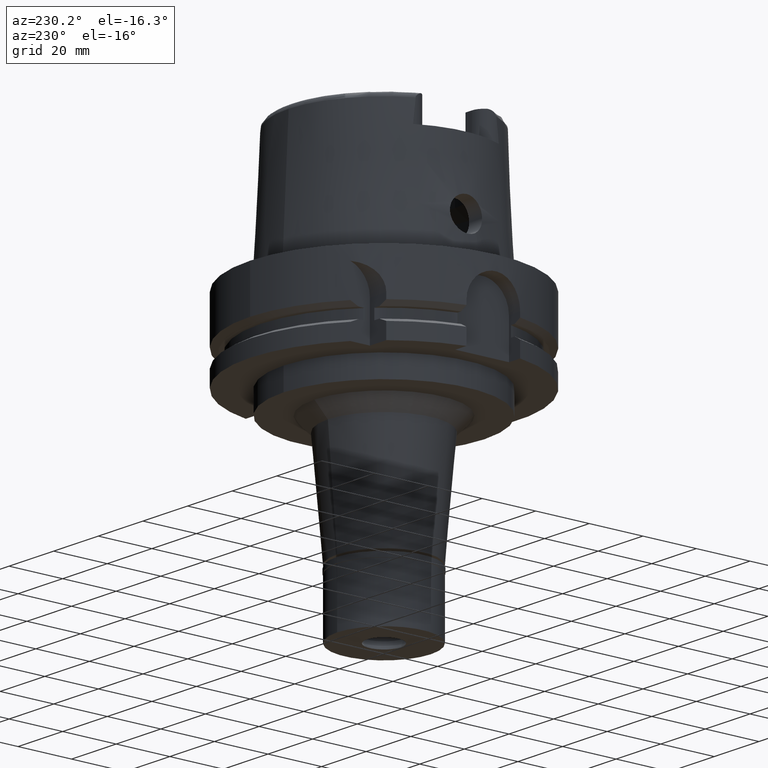
[diagram: clean part render]
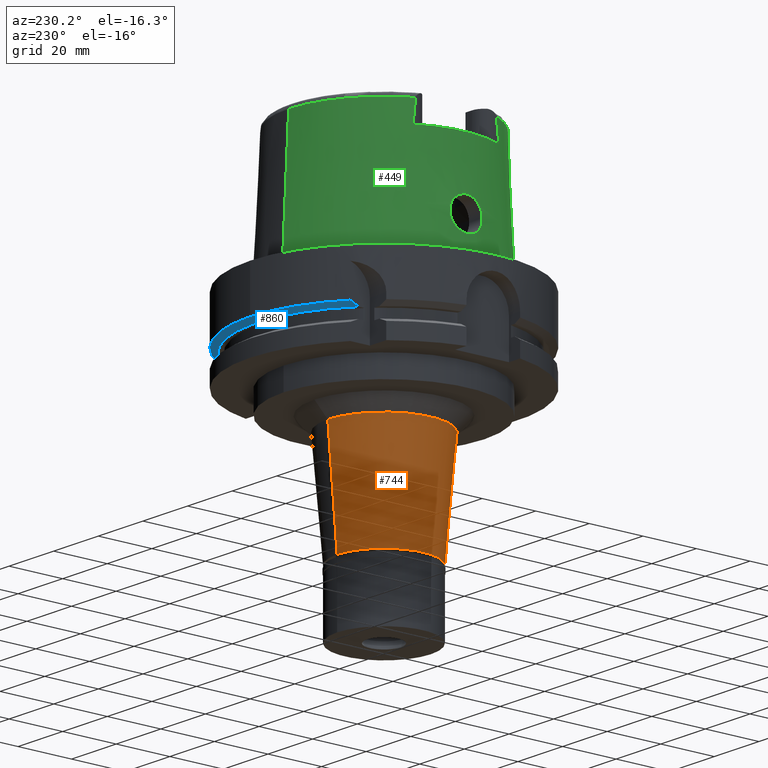
[diagram: same view with three faces highlighted in distinct colors, each labeled with its STEP entity id]
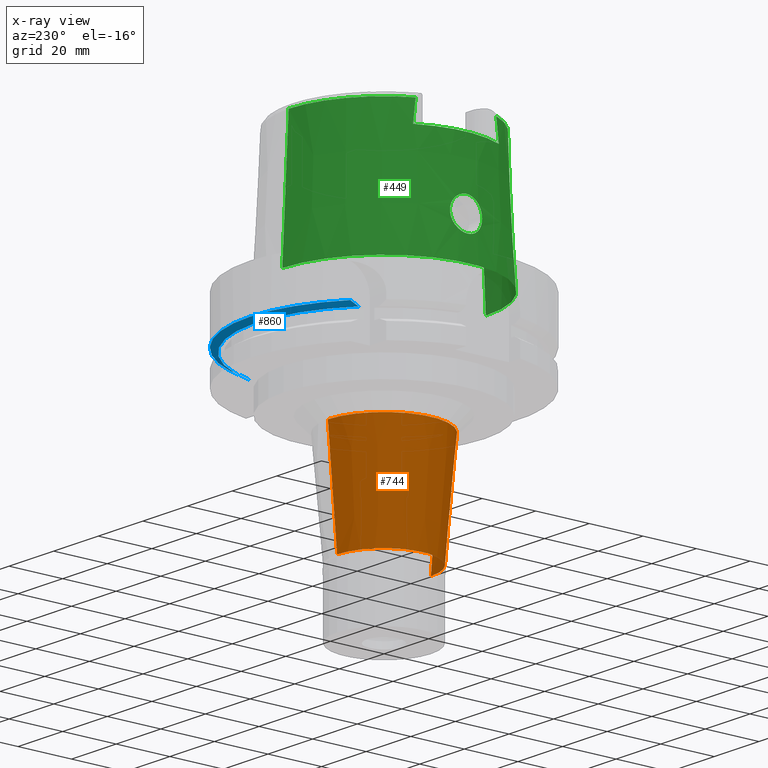
[diagram: x-ray of the same camera — body ghosted, the three highlighted faces saturated]
A machine part, auxiliary view with three faces highlighted in distinct colors.
The next image is the same camera in x-ray (body ghosted, the three faces saturated) — at least one of them is partly hidden behind the body in this view.
Their STEP definitions:

[orange] entity #744 — the highlighted conical surface has half-angle 5 deg.
#154 = CIRCLE ( 'NONE', #4940, 17.50000000000000000 ) ;
#333 = CARTESIAN_POINT ( 'NONE',  ( 0.0000000000000000000, 20.97329994197999881, -42.00000000000000000 ) ) ;
#450 = AXIS2_PLACEMENT_3D ( 'NONE', #1663, #3416, #5142 ) ;
#484 = DIRECTION ( 'NONE',  ( 0.0000000000000000000, -0.08715574274767391716, -0.9961946980917442129 ) ) ;
#688 = ORIENTED_EDGE ( 'NONE', *, *, #2232, .T. ) ;
#744 = ADVANCED_FACE ( 'NONE', ( #2501 ), #3233, .T. ) ;
#1269 = CARTESIAN_POINT ( 'NONE',  ( 0.0000000000000000000, 20.97329994197999881, -42.00000000000000000 ) ) ;
#1326 = DIRECTION ( 'NONE',  ( 0.0000000000000000000, 0.08715574274767391716, -0.9961946980917442129 ) ) ;
#1400 = DIRECTION ( 'NONE',  ( 0.0000000000000000000, 0.0000000000000000000, 1.000000000000000000 ) ) ;
#1442 = VERTEX_POINT ( 'NONE', #333 ) ;
#1458 = DIRECTION ( 'NONE',  ( 0.0000000000000000000, 1.000000000000000000, 0.0000000000000000000 ) ) ;
#1608 = DIRECTION ( 'NONE',  ( 0.0000000000000000000, -1.000000000000000000, 0.0000000000000000000 ) ) ;
#1663 = CARTESIAN_POINT ( 'NONE',  ( 0.0000000000000000000, 0.0000000000000000000, -61.85000000000000142 ) ) ;
#1693 = ORIENTED_EDGE ( 'NONE', *, *, #2671, .T. ) ;
#1745 = LINE ( 'NONE', #1777, #2748 ) ;
#1777 = CARTESIAN_POINT ( 'NONE',  ( 0.0000000000000000000, -20.97329994197999881, -42.00000000000000000 ) ) ;
#1967 = CARTESIAN_POINT ( 'NONE',  ( 0.0000000000000000000, -20.97329994197999881, -42.00000000000000000 ) ) ;
#2093 = ORIENTED_EDGE ( 'NONE', *, *, #2921, .T. ) ;
#2143 = LINE ( 'NONE', #1269, #3478 ) ;
#2174 = VERTEX_POINT ( 'NONE', #5230 ) ;
#2232 = EDGE_CURVE ( 'NONE', #1442, #2174, #2143, .T. ) ;
#2244 = EDGE_LOOP ( 'NONE', ( #2093, #3253, #1693, #688 ) ) ;
#2273 = EDGE_CURVE ( 'NONE', #3920, #4770, #1745, .T. ) ;
#2345 = CARTESIAN_POINT ( 'NONE',  ( 0.0000000000000000000, -17.50000000000000000, -81.69999999999998863 ) ) ;
#2382 = CARTESIAN_POINT ( 'NONE',  ( 0.0000000000000000000, 0.0000000000000000000, -81.69999999999998863 ) ) ;
#2501 = FACE_OUTER_BOUND ( 'NONE', #2244, .T. ) ;
#2671 = EDGE_CURVE ( 'NONE', #3920, #1442, #3393, .T. ) ;
#2748 = VECTOR ( 'NONE', #1326, 1000.000000000000000 ) ;
#2921 = EDGE_CURVE ( 'NONE', #2174, #4770, #154, .T. ) ;
#3112 = AXIS2_PLACEMENT_3D ( 'NONE', #3750, #5488, #1608 ) ;
#3233 = CONICAL_SURFACE ( 'NONE', #450, 19.23664997098999763, 0.08726646259969973729 ) ;
#3253 = ORIENTED_EDGE ( 'NONE', *, *, #2273, .F. ) ;
#3393 = CIRCLE ( 'NONE', #3112, 20.97329994197999881 ) ;
#3416 = DIRECTION ( 'NONE',  ( 0.0000000000000000000, 0.0000000000000000000, 1.000000000000000000 ) ) ;
#3478 = VECTOR ( 'NONE', #484, 1000.000000000000000 ) ;
#3750 = CARTESIAN_POINT ( 'NONE',  ( 0.0000000000000000000, 0.0000000000000000000, -42.00000000000000000 ) ) ;
#3920 = VERTEX_POINT ( 'NONE', #1967 ) ;
#4770 = VERTEX_POINT ( 'NONE', #2345 ) ;
#4940 = AXIS2_PLACEMENT_3D ( 'NONE', #2382, #1400, #1458 ) ;
#5142 = DIRECTION ( 'NONE',  ( 0.0000000000000000000, 1.000000000000000000, 0.0000000000000000000 ) ) ;
#5230 = CARTESIAN_POINT ( 'NONE',  ( 0.0000000000000000000, 17.50000000000000000, -81.69999999999998863 ) ) ;
#5488 = DIRECTION ( 'NONE',  ( 0.0000000000000000000, 0.0000000000000000000, -1.000000000000000000 ) ) ;

[blue] entity #860 — the highlighted conical surface has half-angle 60 deg.
#164 = CIRCLE ( 'NONE', #1149, 47.62259526418999656 ) ;
#318 = EDGE_CURVE ( 'NONE', #3232, #936, #2723, .T. ) ;
#339 = AXIS2_PLACEMENT_3D ( 'NONE', #4835, #503, #2980 ) ;
#393 = ORIENTED_EDGE ( 'NONE', *, *, #318, .F. ) ;
#422 = CARTESIAN_POINT ( 'NONE',  ( 0.0000000000000000000, 50.00000000000000000, -16.75240473580999989 ) ) ;
#503 = DIRECTION ( 'NONE',  ( 0.0000000000000000000, 0.0000000000000000000, 1.000000000000000000 ) ) ;
#514 = CARTESIAN_POINT ( 'NONE',  ( 0.0000000000000000000, 0.0000000000000000000, -16.75240473580999989 ) ) ;
#600 = DIRECTION ( 'NONE',  ( 0.9729578356532629924, 0.2309827916553914839, 0.0000000000000000000 ) ) ;
#825 = ORIENTED_EDGE ( 'NONE', *, *, #4274, .T. ) ;
#860 = ADVANCED_FACE ( 'NONE', ( #3551 ), #3963, .T. ) ;
#936 = VERTEX_POINT ( 'NONE', #2187 ) ;
#983 = DIRECTION ( 'NONE',  ( 0.0000000000000000000, 0.0000000000000000000, 1.000000000000000000 ) ) ;
#1149 = AXIS2_PLACEMENT_3D ( 'NONE', #1803, #5207, #600 ) ;
#1251 = CARTESIAN_POINT ( 'NONE',  ( -31.50000711004718212, 37.77100375014965294, -17.22711240004090172 ) ) ;
#1278 = VERTEX_POINT ( 'NONE', #422 ) ;
#1594 = EDGE_CURVE ( 'NONE', #4978, #3063, #4214, .T. ) ;
#1678 = EDGE_LOOP ( 'NONE', ( #4257, #3281, #393, #825, #5442 ) ) ;
#1785 = CARTESIAN_POINT ( 'NONE',  ( -31.50000195460757979, 36.73337253298934257, -17.68464608511978042 ) ) ;
#1803 = CARTESIAN_POINT ( 'NONE',  ( 0.0000000000000000000, 0.0000000000000000000, -18.12500000000000000 ) ) ;
#1906 = CARTESIAN_POINT ( 'NONE',  ( 47.96191616323000062, 11.00000000000000000, -17.21020456769999996 ) ) ;
#1971 = CARTESIAN_POINT ( 'NONE',  ( 46.60605711264999940, 11.00000000000000000, -17.97261191788999923 ) ) ;
#2187 = CARTESIAN_POINT ( 'NONE',  ( 48.77499359303000404, 11.00000000000000000, -16.75240473580999989 ) ) ;
#2294 = AXIS2_PLACEMENT_3D ( 'NONE', #514, #2881, #5477 ) ;
#2374 = EDGE_CURVE ( 'NONE', #1278, #3063, #3749, .T. ) ;
#2418 = CARTESIAN_POINT ( 'NONE',  ( 47.14851446811000102, 11.00000000000000000, -17.66774350266999960 ) ) ;
#2723 = B_SPLINE_CURVE_WITH_KNOTS ( 'NONE', 3,
 ( #5033, #1971, #2418, #1906, #5458, #3688 ),
 .UNSPECIFIED., .F., .F.,
 ( 4, 1, 1, 4 ),
 ( 0.0000000000000000000, 0.3333333333333000081, 0.6666666666667000474, 1.000000000000000000 ),
 .UNSPECIFIED. ) ;
#2746 = EDGE_CURVE ( 'NONE', #936, #1278, #4116, .T. ) ;
#2881 = DIRECTION ( 'NONE',  ( 0.0000000000000000000, 0.0000000000000000000, 1.000000000000000000 ) ) ;
#2980 = DIRECTION ( 'NONE',  ( 0.9754998718605770724, 0.2199999999999950051, 0.0000000000000000000 ) ) ;
#3063 = VERTEX_POINT ( 'NONE', #5534 ) ;
#3232 = VERTEX_POINT ( 'NONE', #4396 ) ;
#3281 = ORIENTED_EDGE ( 'NONE', *, *, #2746, .F. ) ;
#3551 = FACE_OUTER_BOUND ( 'NONE', #1678, .T. ) ;
#3688 = CARTESIAN_POINT ( 'NONE',  ( 48.77499359303000404, 11.00000000000000000, -16.75240473580999989 ) ) ;
#3749 = CIRCLE ( 'NONE', #2294, 50.00000000000000000 ) ;
#3768 = CARTESIAN_POINT ( 'NONE',  ( -31.50000097280999967, 35.71639618471999711, -18.12500000000000000 ) ) ;
#3919 = CARTESIAN_POINT ( 'NONE',  ( 0.0000000000000000000, 0.0000000000000000000, -17.43870236789999950 ) ) ;
#3963 = CONICAL_SURFACE ( 'NONE', #4708, 48.81129763208999606, 1.047197551196400456 ) ;
#4116 = CIRCLE ( 'NONE', #339, 50.00000000000000711 ) ;
#4214 = B_SPLINE_CURVE_WITH_KNOTS ( 'NONE', 3,
 ( #4823, #1785, #1251, #4401 ),
 .UNSPECIFIED., .F., .F.,
 ( 4, 4 ),
 ( 0.0000000000000000000, 1.000000000000000000 ),
 .UNSPECIFIED. ) ;
#4257 = ORIENTED_EDGE ( 'NONE', *, *, #2374, .F. ) ;
#4274 = EDGE_CURVE ( 'NONE', #3232, #4978, #164, .T. ) ;
#4396 = CARTESIAN_POINT ( 'NONE',  ( 46.33477721644000269, 11.00000000000000000, -18.12500000000000000 ) ) ;
#4401 = CARTESIAN_POINT ( 'NONE',  ( -31.50000355958999876, 38.82975374304999860, -16.75239179145000179 ) ) ;
#4708 = AXIS2_PLACEMENT_3D ( 'NONE', #3919, #983, #4810 ) ;
#4810 = DIRECTION ( 'NONE',  ( 0.0000000000000000000, 1.000000000000000000, 0.0000000000000000000 ) ) ;
#4823 = CARTESIAN_POINT ( 'NONE',  ( -31.50000097280999967, 35.71639618471999711, -18.12500000000000000 ) ) ;
#4835 = CARTESIAN_POINT ( 'NONE',  ( 0.0000000000000000000, 0.0000000000000000000, -16.75240473580999989 ) ) ;
#4978 = VERTEX_POINT ( 'NONE', #3768 ) ;
#5033 = CARTESIAN_POINT ( 'NONE',  ( 46.33477721644000269, 11.00000000000000000, -18.12500000000000000 ) ) ;
#5207 = DIRECTION ( 'NONE',  ( 0.0000000000000000000, 0.0000000000000000000, 1.000000000000000000 ) ) ;
#5442 = ORIENTED_EDGE ( 'NONE', *, *, #1594, .T. ) ;
#5458 = CARTESIAN_POINT ( 'NONE',  ( 48.50399904748000068, 11.00000000000000000, -16.90503024962000111 ) ) ;
#5477 = DIRECTION ( 'NONE',  ( 0.0000000000000000000, 1.000000000000000000, 0.0000000000000000000 ) ) ;
#5534 = CARTESIAN_POINT ( 'NONE',  ( -31.50000355958999876, 38.82975374304999860, -16.75239179145000179 ) ) ;

[green] entity #449 — the highlighted conical surface has half-angle 2.862 deg.
#38 = DIRECTION ( 'NONE',  ( -0.8958345712659759874, -0.4443876921390880197, 0.0000000000000000000 ) ) ;
#75 = ORIENTED_EDGE ( 'NONE', *, *, #288, .T. ) ;
#80 = CARTESIAN_POINT ( 'NONE',  ( -37.22458427377591050, -4.221593802879918478, 10.73641198237089434 ) ) ;
#110 = CARTESIAN_POINT ( 'NONE',  ( -36.77276174716448054, -5.997828137713057117, 14.82764909676942189 ) ) ;
#160 = CARTESIAN_POINT ( 'NONE',  ( -36.71884927666170029, -5.553316525183480401, 17.27171751691884438 ) ) ;
#168 = VERTEX_POINT ( 'NONE', #1849 ) ;
#169 = CARTESIAN_POINT ( 'NONE',  ( -36.90259898953371476, 2.267666611607008775, 20.55497358125128216 ) ) ;
#171 = CARTESIAN_POINT ( 'NONE',  ( -37.51960086224692503, -1.324552137195122326, 9.144807390599350327 ) ) ;
#182 = B_SPLINE_CURVE_WITH_KNOTS ( 'NONE', 3,
 ( #2891, #4617, #4291, #4233 ),
 .UNSPECIFIED., .F., .F.,
 ( 4, 4 ),
 ( 0.0000000000000000000, 1.000000000000000000 ),
 .UNSPECIFIED. ) ;
#201 = CARTESIAN_POINT ( 'NONE',  ( -36.94998175923001327, 0.3620854997938169895, 20.99999999999999289 ) ) ;
#222 = CARTESIAN_POINT ( 'NONE',  ( -36.80154750448905787, -4.127489790887455712, 19.35922440188001303 ) ) ;
#232 = CARTESIAN_POINT ( 'NONE',  ( -36.89536430714902338, 2.442662695775720039, 20.48269676875938572 ) ) ;
#235 = DIRECTION ( 'NONE',  ( 0.0000000000000000000, 0.0000000000000000000, -1.000000000000000000 ) ) ;
#260 = CARTESIAN_POINT ( 'NONE',  ( -36.72451466916771068, 5.395430664952247213, 17.62623818776305029 ) ) ;
#288 = EDGE_CURVE ( 'NONE', #2296, #1817, #889, .T. ) ;
#310 = CARTESIAN_POINT ( 'NONE',  ( -36.71978830718548181, 5.521661204333573103, 17.34763116291977525 ) ) ;
#341 = CARTESIAN_POINT ( 'NONE',  ( -36.72121953183530962, 5.478848648944635968, 17.44652880248584736 ) ) ;
#356 = EDGE_CURVE ( 'NONE', #507, #4088, #718, .T. ) ;
#368 = CARTESIAN_POINT ( 'NONE',  ( -37.42106264864411713, 2.696611553731330435, 9.639314901870983832 ) ) ;
#382 = B_SPLINE_CURVE_WITH_KNOTS ( 'NONE', 3,
 ( #645, #201, #3580, #4591, #591, #3607, #3662, #4980, #4527, #3632, #169, #1066, #1904, #232, #2774, #5313, #2357, #5373, #1123, #2829, #1873, #4950, #1937, #1517, #1546, #706, #3179, #4920, #2417, #1091, #1431, #673, #3150, #4890, #2386, #2721, #4118, #260, #3780, #341, #4173, #310, #2057, #5511, #2103, #395, #2026, #2893, #2858, #1656, #5084, #3383, #5487, #4642, #1630, #3748, #733, #5059, #3717, #1606, #1174, #2080, #3325, #2952, #2549, #2527, #3356, #5454, #1147, #1576, #2919, #3830, #5568, #1685, #1202, #4673, #761, #2467, #4200, #2495, #4618, #4702, #2441, #3411, #5137, #788, #3805, #1232, #4227, #5110, #368, #5537, #814, #3296, #4253, #1257, #2978, #4728, #836, #4284, #1999 ),
 .UNSPECIFIED., .F., .F.,
 ( 4, 2, 2, 1, 1, 1, 1, 2, 2, 2, 2, 1, 1, 2, 2, 2, 1, 1, 1, 2, 2, 2, 2, 2, 1, 1, 2, 2, 2, 2, 1, 1, 2, 2, 2, 2, 2, 1, 1, 1, 2, 2, 2, 2, 1, 1, 2, 2, 2, 1, 1, 1, 2, 2, 2, 2, 2, 1, 1, 2, 2, 4 ),
 ( 0.0000000000000000000, 0.06250000000000811851, 0.09375000000001218470, 0.1093750000000141415, 0.1171875000000151268, 0.1210937500000156958, 0.1230468750000158901, 0.1240234375000160982, 0.1250000000000163203, 0.1562500000000177081, 0.1718750000000185407, 0.1796875000000188460, 0.1835937500000189571, 0.1855468750000190126, 0.1875000000000190681, 0.2187500000000215938, 0.2343750000000230094, 0.2421875000000237310, 0.2460937500000242306, 0.2480468750000246747, 0.2500000000000250910, 0.3125000000000369704, 0.3437500000000431322, 0.3593750000000462408, 0.3671875000000477396, 0.3710937500000482392, 0.3730468750000488498, 0.3750000000000494604, 0.4375000000000683897, 0.4687500000000781597, 0.4843750000000829892, 0.4921875000000854317, 0.4960937500000864864, 0.5000000000000874856, 0.5625000000001065814, 0.5937500000001160183, 0.6093750000001205702, 0.6171875000001226796, 0.6210937500001236788, 0.6230468750001240119, 0.6240234375001240119, 0.6250000000001240119, 0.6562500000001173506, 0.6718750000001137979, 0.6796875000001119105, 0.6835937500001111333, 0.6855468750001105782, 0.6875000000001100231, 0.7187500000001003642, 0.7343750000000954792, 0.7421875000000931477, 0.7460937500000922595, 0.7480468750000915934, 0.7500000000000909273, 0.8125000000000669464, 0.8437500000000549560, 0.8593750000000489608, 0.8671875000000459632, 0.8710937500000445199, 0.8730468750000438538, 0.8750000000000432987, 1.000000000000000000 ),
 .UNSPECIFIED. ) ;
#395 = CARTESIAN_POINT ( 'NONE',  ( -36.71597261215764263, 5.807564270791669259, 16.55704338559991484 ) ) ;
#396 = CARTESIAN_POINT ( 'NONE',  ( -32.25000136840999687, 15.06443226760000087, 48.09991934453000084 ) ) ;
#401 = CARTESIAN_POINT ( 'NONE',  ( -37.34501071496810454, -3.380611323272117108, 10.03914458360237028 ) ) ;
#427 = EDGE_CURVE ( 'NONE', #1288, #1817, #182, .T. ) ;
#449 = ADVANCED_FACE ( 'NONE', ( #1548, #2150 ), #1254, .T. ) ;
#465 = CARTESIAN_POINT ( 'NONE',  ( 0.0000000000000000000, 0.0000000000000000000, 24.04993926899999934 ) ) ;
#500 = CARTESIAN_POINT ( 'NONE',  ( -37.25706755635587086, -4.015699820166669376, 10.54159880199742361 ) ) ;
#507 = VERTEX_POINT ( 'NONE', #853 ) ;
#519 = CARTESIAN_POINT ( 'NONE',  ( -32.24999999999000266, 15.99793480980999938, 40.00000000000000000 ) ) ;
#528 = CARTESIAN_POINT ( 'NONE',  ( -37.24736509132150530, -4.079037846667858069, 10.59917196192210831 ) ) ;
#554 = CARTESIAN_POINT ( 'NONE',  ( -36.89402278988661976, -2.470276282897075681, 20.46829095914205610 ) ) ;
#584 = CARTESIAN_POINT ( 'NONE',  ( -36.72005224789336353, -5.854018139771046236, 16.32994858493756851 ) ) ;
#591 = CARTESIAN_POINT ( 'NONE',  ( -36.92881293369348583, 1.511298223154747378, 20.81010936663939148 ) ) ;
#593 = CARTESIAN_POINT ( 'NONE',  ( -37.54240145924924121, -0.7524096873782194494, 9.034704106948934665 ) ) ;
#612 = CARTESIAN_POINT ( 'NONE',  ( -36.85838396734732214, -3.194525966027641051, 20.08259276493987855 ) ) ;
#638 = CARTESIAN_POINT ( 'NONE',  ( -36.71804686816724228, -5.584248040057079088, 17.19482920449719643 ) ) ;
#645 = CARTESIAN_POINT ( 'NONE',  ( -36.94998175923000616, 0.0000000000000000000, 21.00000000000000000 ) ) ;
#673 = CARTESIAN_POINT ( 'NONE',  ( -36.79462996013679543, 4.234111170528758628, 19.25117527992054889 ) ) ;
#706 = CARTESIAN_POINT ( 'NONE',  ( -36.81738884306668069, 3.883414085562010509, 19.57479386872116933 ) ) ;
#718 = B_SPLINE_CURVE_WITH_KNOTS ( 'NONE', 3,
 ( #2861, #4036, #593, #171, #1876, #5345, #3182, #3209, #4924, #4531, #2959, #4858, #3787, #3837, #945, #401, #1694, #5576, #1395, #500, #528, #5519, #3542, #4260, #3943, #80, #3418, #4805, #5217, #4709, #1341, #4205, #4235, #913, #1789, #3362, #5271, #2929, #2503, #3517, #5243, #3080, #2236, #5546, #3970, #110, #3115, #4681, #1665, #796, #3812, #584, #2288, #1453, #3170, #5363, #638, #4027, #2349, #5304, #160, #1896, #2687, #1868, #5393, #978, #1001, #4432, #3142, #4460, #1028, #4490, #4881, #222, #4942, #3998, #3599, #4080, #1424, #612, #2320, #4056, #1838, #554, #1059, #1481, #3198, #2769, #4518, #1927 ),
 .UNSPECIFIED., .F., .F.,
 ( 4, 2, 2, 1, 1, 1, 1, 2, 2, 2, 2, 2, 1, 1, 1, 2, 2, 2, 2, 2, 1, 1, 2, 2, 2, 2, 2, 1, 2, 2, 2, 2, 1, 1, 1, 1, 2, 2, 2, 2, 2, 1, 1, 2, 2, 2, 2, 2, 2, 1, 1, 2, 2, 4 ),
 ( 0.0000000000000000000, 0.06250000000001851297, 0.09375000000002774170, 0.1093750000000323491, 0.1171875000000345834, 0.1210937500000356937, 0.1230468750000361516, 0.1240234375000363043, 0.1250000000000364431, 0.1875000000000495992, 0.2187500000000560940, 0.2343750000000594247, 0.2421875000000612566, 0.2460937500000621170, 0.2480468750000626443, 0.2490234375000627831, 0.2500000000000628941, 0.2812500000000599520, 0.3125000000000569544, 0.3437500000000540124, 0.3593750000000526801, 0.3671875000000519584, 0.3710937500000515143, 0.3750000000000510703, 0.4375000000000459632, 0.4687500000000434097, 0.4843750000000421885, 0.4921875000000415779, 0.4960937500000414668, 0.5000000000000413003, 0.5625000000000373035, 0.5937500000000351941, 0.6093750000000341949, 0.6171875000000337508, 0.6210937500000335287, 0.6230468750000330846, 0.6240234375000328626, 0.6250000000000325295, 0.6875000000000254241, 0.7187500000000222045, 0.7343750000000205391, 0.7421875000000197620, 0.7460937500000192069, 0.7480468750000187628, 0.7500000000000183187, 0.7812500000000164313, 0.7968750000000153211, 0.8125000000000142109, 0.8437500000000119904, 0.8593750000000108802, 0.8671875000000103251, 0.8710937500000098810, 0.8750000000000094369, 1.000000000000000000 ),
 .UNSPECIFIED. ) ;
#733 = CARTESIAN_POINT ( 'NONE',  ( -36.85049798439170132, 5.865194247816921447, 13.72035669143918035 ) ) ;
#761 = CARTESIAN_POINT ( 'NONE',  ( -37.07597698746116777, 5.020170346640989933, 11.71396277587342993 ) ) ;
#788 = CARTESIAN_POINT ( 'NONE',  ( -37.21441879164284217, 4.283082464000643519, 10.79816603088278804 ) ) ;
#796 = CARTESIAN_POINT ( 'NONE',  ( -36.74490949270889217, -6.000833668670646048, 15.36734265211441475 ) ) ;
#814 = CARTESIAN_POINT ( 'NONE',  ( -37.43997605462602962, 2.493000928233993108, 9.542257842085348329 ) ) ;
#836 = CARTESIAN_POINT ( 'NONE',  ( -37.51904128686145867, 1.536221280790964538, 9.142530770786155614 ) ) ;
#853 = CARTESIAN_POINT ( 'NONE',  ( -37.55000165825000380, 1.571614468376999917E-13, 9.000000000000000000 ) ) ;
#889 = CIRCLE ( 'NONE', #4710, 35.59494289391000166 ) ;
#913 = CARTESIAN_POINT ( 'NONE',  ( -36.99144422396098975, -5.389200727527734713, 12.35916870024663083 ) ) ;
#945 = CARTESIAN_POINT ( 'NONE',  ( -37.40374093244170695, -2.882816525268892427, 9.723273135040454207 ) ) ;
#978 = CARTESIAN_POINT ( 'NONE',  ( -36.76830926664723620, -4.641448420318259771, 18.80372369947808409 ) ) ;
#1001 = CARTESIAN_POINT ( 'NONE',  ( -36.77276165403406338, -4.571762233601344150, 18.88732769614147600 ) ) ;
#1028 = CARTESIAN_POINT ( 'NONE',  ( -36.78989056870381802, -4.306654970202860255, 19.17767032302903019 ) ) ;
#1033 = CARTESIAN_POINT ( 'NONE',  ( 0.0000000000000000000, 38.00001658251999714, 1.023181539494999863E-12 ) ) ;
#1059 = CARTESIAN_POINT ( 'NONE',  ( -36.89701282369646407, -2.400789143876195464, 20.49880470437037872 ) ) ;
#1066 = CARTESIAN_POINT ( 'NONE',  ( -36.90209890753163791, 2.279852555208540466, 20.54998339423696763 ) ) ;
#1091 = CARTESIAN_POINT ( 'NONE',  ( -36.79631918502401788, 4.208977589825311227, 19.27605639980402685 ) ) ;
#1123 = CARTESIAN_POINT ( 'NONE',  ( -36.85934644505748281, 3.167597660083956601, 20.09625303988305944 ) ) ;
#1143 = EDGE_CURVE ( 'NONE', #4088, #507, #382, .T. ) ;
#1145 = CIRCLE ( 'NONE', #4405, 35.59494289391000166 ) ;
#1147 = CARTESIAN_POINT ( 'NONE',  ( -36.98330106961999775, 5.423636042219725617, 12.42651665599872679 ) ) ;
#1174 = CARTESIAN_POINT ( 'NONE',  ( -36.92014684295252636, 5.653701676466982740, 12.99044152272307073 ) ) ;
#1202 = CARTESIAN_POINT ( 'NONE',  ( -37.07085319125634015, 5.044197110538277684, 11.75095813091598629 ) ) ;
#1232 = CARTESIAN_POINT ( 'NONE',  ( -37.31767801395447037, 3.614384479056960142, 10.19410314326941425 ) ) ;
#1247 = EDGE_LOOP ( 'NONE', ( #2009, #2993, #3509, #2800, #3996, #75, #1847, #1913 ) ) ;
#1254 = CONICAL_SURFACE ( 'NONE', #4877, 36.79747973821000073, 0.04996004983832824653 ) ;
#1257 = CARTESIAN_POINT ( 'NONE',  ( -37.45383398869419977, 2.332398765694672083, 9.471887060040385720 ) ) ;
#1288 = VERTEX_POINT ( 'NONE', #2658 ) ;
#1341 = CARTESIAN_POINT ( 'NONE',  ( -37.06347648999376787, -5.078408783768761481, 11.79888748483370620 ) ) ;
#1359 = CARTESIAN_POINT ( 'NONE',  ( 1.065814103639999922E-14, -35.59494289391000166, 48.09987853799000135 ) ) ;
#1395 = CARTESIAN_POINT ( 'NONE',  ( -37.27610922675535932, -3.888812621382761403, 10.42945500537147474 ) ) ;
#1421 = LINE ( 'NONE', #3995, #2275 ) ;
#1424 = CARTESIAN_POINT ( 'NONE',  ( -36.84402668719670970, -3.436112196117506734, 19.91961068745825969 ) ) ;
#1431 = CARTESIAN_POINT ( 'NONE',  ( -36.79514658632017898, 4.226439078794799187, 19.25879835155326703 ) ) ;
#1447 = LINE ( 'NONE', #1956, #5068 ) ;
#1453 = CARTESIAN_POINT ( 'NONE',  ( -36.71651390962907158, -5.722373955465924311, 16.80672948826891755 ) ) ;
#1467 = CARTESIAN_POINT ( 'NONE',  ( -32.25000000000000000, 15.68473281702488187, 42.78334885010497146 ) ) ;
#1481 = CARTESIAN_POINT ( 'NONE',  ( -36.89899240287477511, -2.354273205169047589, 20.51888026374758311 ) ) ;
#1502 = CARTESIAN_POINT ( 'NONE',  ( -32.24999491821000674, -15.06448487312000140, 48.09973206891000075 ) ) ;
#1517 = CARTESIAN_POINT ( 'NONE',  ( -36.84071657640829045, 3.497806147837849267, 19.87892690630817683 ) ) ;
#1546 = CARTESIAN_POINT ( 'NONE',  ( -36.83139858978653791, 3.655724062153297371, 19.76174938298039052 ) ) ;
#1548 = FACE_OUTER_BOUND ( 'NONE', #1247, .T. ) ;
#1576 = CARTESIAN_POINT ( 'NONE',  ( -37.01600971179541943, 5.288572912877543608, 12.16439465805674658 ) ) ;
#1606 = CARTESIAN_POINT ( 'NONE',  ( -36.90501359695027617, 5.704339724524920996, 13.13688970065336648 ) ) ;
#1630 = CARTESIAN_POINT ( 'NONE',  ( -36.78009769305905508, 6.001645253260259771, 14.67004141970621234 ) ) ;
#1656 = CARTESIAN_POINT ( 'NONE',  ( -36.74695524581954942, 5.990444046524676658, 15.36124718347296891 ) ) ;
#1665 = CARTESIAN_POINT ( 'NONE',  ( -36.76554947711810684, -5.999932060481422802, 14.96283197135051068 ) ) ;
#1685 = CARTESIAN_POINT ( 'NONE',  ( -37.06598491345076241, 5.066892955463582204, 11.78628582297630167 ) ) ;
#1694 = CARTESIAN_POINT ( 'NONE',  ( -37.32349659090755978, -3.549658565753179396, 10.15783169729158786 ) ) ;
#1789 = CARTESIAN_POINT ( 'NONE',  ( -36.97265731859354787, -5.463003190469038373, 12.51806378796736041 ) ) ;
#1817 = VERTEX_POINT ( 'NONE', #1502 ) ;
#1838 = CARTESIAN_POINT ( 'NONE',  ( -36.88690138903394455, -2.630377812017963723, 20.39433189247239753 ) ) ;
#1847 = ORIENTED_EDGE ( 'NONE', *, *, #427, .F. ) ;
#1849 = CARTESIAN_POINT ( 'NONE',  ( 0.0000000000000000000, 35.59494289391000166, 48.09987853799000135 ) ) ;
#1868 = CARTESIAN_POINT ( 'NONE',  ( -36.74854100444115801, -4.957375849034130866, 18.38564284803727844 ) ) ;
#1873 = CARTESIAN_POINT ( 'NONE',  ( -36.85273032154114503, 3.286520178420235361, 20.01985964100911630 ) ) ;
#1876 = CARTESIAN_POINT ( 'NONE',  ( -37.51010061349597180, -1.515504091926995978, 9.191164103795108176 ) ) ;
#1896 = CARTESIAN_POINT ( 'NONE',  ( -36.72230407857880863, -5.430248180728511898, 17.57185105246653833 ) ) ;
#1904 = CARTESIAN_POINT ( 'NONE',  ( -36.90179060870004690, 2.287329181416283053, 20.54690464656911786 ) ) ;
#1913 = ORIENTED_EDGE ( 'NONE', *, *, #2266, .T. ) ;
#1920 = EDGE_CURVE ( 'NONE', #168, #3784, #1447, .T. ) ;
#1927 = CARTESIAN_POINT ( 'NONE',  ( -36.94998175923000616, 0.0000000000000000000, 21.00000000000000000 ) ) ;
#1937 = CARTESIAN_POINT ( 'NONE',  ( -36.85059372738632533, 3.324318908885735890, 19.99490284970404730 ) ) ;
#1940 = AXIS2_PLACEMENT_3D ( 'NONE', #3899, #2195, #38 ) ;
#1956 = CARTESIAN_POINT ( 'NONE',  ( 0.002482252536769999872, 35.59494263424999616, 48.09987853799000135 ) ) ;
#1979 = DIRECTION ( 'NONE',  ( 0.0000000000000000000, 1.000000000000000000, 0.0000000000000000000 ) ) ;
#1999 = CARTESIAN_POINT ( 'NONE',  ( -37.55000165825000380, 1.571614468376999917E-13, 9.000000000000000000 ) ) ;
#2009 = ORIENTED_EDGE ( 'NONE', *, *, #4541, .F. ) ;
#2026 = CARTESIAN_POINT ( 'NONE',  ( -36.72670439007215037, 5.922108659885275017, 15.98319669268965981 ) ) ;
#2057 = CARTESIAN_POINT ( 'NONE',  ( -36.71952794718215785, 5.530000817697334980, 17.32791870322427386 ) ) ;
#2064 = VERTEX_POINT ( 'NONE', #4187 ) ;
#2080 = CARTESIAN_POINT ( 'NONE',  ( -36.92786390023993448, 5.627317596223537777, 12.91719884150511710 ) ) ;
#2103 = CARTESIAN_POINT ( 'NONE',  ( -36.71469027261633045, 5.692644689506281885, 16.93775579058884162 ) ) ;
#2125 = VERTEX_POINT ( 'NONE', #2452 ) ;
#2150 = FACE_BOUND ( 'NONE', #3836, .T. ) ;
#2195 = DIRECTION ( 'NONE',  ( 0.0000000000000000000, 0.0000000000000000000, -1.000000000000000000 ) ) ;
#2236 = CARTESIAN_POINT ( 'NONE',  ( -36.79067746601523936, -5.982075173847654526, 14.52701903359997537 ) ) ;
#2266 = EDGE_CURVE ( 'NONE', #1288, #5426, #4582, .T. ) ;
#2275 = VECTOR ( 'NONE', #3650, 1000.000000000000227 ) ;
#2276 = DIRECTION ( 'NONE',  ( 0.0000000000000000000, 0.0000000000000000000, -1.000000000000000000 ) ) ;
#2288 = CARTESIAN_POINT ( 'NONE',  ( -36.71774788417329205, -5.807249433935047556, 16.52157633129653291 ) ) ;
#2296 = VERTEX_POINT ( 'NONE', #1359 ) ;
#2320 = CARTESIAN_POINT ( 'NONE',  ( -36.86751463321119360, -3.026327996482189864, 20.18467346539112128 ) ) ;
#2349 = CARTESIAN_POINT ( 'NONE',  ( -36.71864206509822282, -5.560907524681197422, 17.25307499340921069 ) ) ;
#2357 = CARTESIAN_POINT ( 'NONE',  ( -36.87045984044078040, 2.959020439418038162, 20.22069885204288653 ) ) ;
#2386 = CARTESIAN_POINT ( 'NONE',  ( -36.73757688993914172, 5.132945467577425980, 18.11302757606488711 ) ) ;
#2417 = CARTESIAN_POINT ( 'NONE',  ( -36.79807782708922304, 4.182705912937042747, 19.30186309226683505 ) ) ;
#2441 = CARTESIAN_POINT ( 'NONE',  ( -37.20590416413888590, 4.333049822170935705, 10.84961015215127134 ) ) ;
#2452 = CARTESIAN_POINT ( 'NONE',  ( 0.0000000000000000000, -38.00001658251999714, 6.892264536873000076E-13 ) ) ;
#2467 = CARTESIAN_POINT ( 'NONE',  ( -37.10028656507230949, 4.905424236436410901, 11.53944286910905070 ) ) ;
#2495 = CARTESIAN_POINT ( 'NONE',  ( -37.15796279591767615, 4.603959297124468719, 11.15120545635177507 ) ) ;
#2503 = CARTESIAN_POINT ( 'NONE',  ( -36.90926826006123918, -5.698826320444040583, 13.07466853421341924 ) ) ;
#2527 = CARTESIAN_POINT ( 'NONE',  ( -36.94521256757918337, 5.565619903478732589, 12.75859011686853250 ) ) ;
#2549 = CARTESIAN_POINT ( 'NONE',  ( -36.94385744231676227, 5.570515764397549141, 12.77078549870219071 ) ) ;
#2658 = CARTESIAN_POINT ( 'NONE',  ( -32.24999876011999334, -15.99794043148000000, 40.00000000000000000 ) ) ;
#2687 = CARTESIAN_POINT ( 'NONE',  ( -36.73013892921380119, -5.271935446863246000, 17.89124676503376676 ) ) ;
#2721 = CARTESIAN_POINT ( 'NONE',  ( -36.73242121862021747, 5.228143096713596449, 17.94956459224743739 ) ) ;
#2763 = CIRCLE ( 'NONE', #4860, 38.00001658251999714 ) ;
#2769 = CARTESIAN_POINT ( 'NONE',  ( -36.93363827849025682, -1.522198004217075296, 20.86571414094155941 ) ) ;
#2774 = CARTESIAN_POINT ( 'NONE',  ( -36.88794992843012466, 2.606698311112279676, 20.40777705281492160 ) ) ;
#2800 = ORIENTED_EDGE ( 'NONE', *, *, #4485, .T. ) ;
#2808 = DIRECTION ( 'NONE',  ( 0.0000000000000000000, 0.0000000000000000000, 1.000000000000000000 ) ) ;
#2829 = CARTESIAN_POINT ( 'NONE',  ( -36.85474426689893335, 3.250661956964064014, 20.04327410425752376 ) ) ;
#2858 = CARTESIAN_POINT ( 'NONE',  ( -36.74151971740263178, 5.979522871700389430, 15.50452480907557451 ) ) ;
#2861 = CARTESIAN_POINT ( 'NONE',  ( -37.55000165825000380, 1.571614468376999917E-13, 9.000000000000000000 ) ) ;
#2891 = CARTESIAN_POINT ( 'NONE',  ( -32.24999876011999334, -15.99794043148000000, 40.00000000000000000 ) ) ;
#2893 = CARTESIAN_POINT ( 'NONE',  ( -36.73174969414409219, 5.950679047255483134, 15.79143862756237482 ) ) ;
#2919 = CARTESIAN_POINT ( 'NONE',  ( -37.02748616312003804, 5.239676491936133829, 12.07476629940895663 ) ) ;
#2929 = CARTESIAN_POINT ( 'NONE',  ( -36.95688140403676414, -5.522797263786002553, 12.65491423001179605 ) ) ;
#2952 = CARTESIAN_POINT ( 'NONE',  ( -36.94182945549453478, 5.577825250973164728, 12.78908003537429039 ) ) ;
#2959 = CARTESIAN_POINT ( 'NONE',  ( -37.46069004240433031, -2.248971803179047324, 9.437431727461218500 ) ) ;
#2978 = CARTESIAN_POINT ( 'NONE',  ( -37.45548763113452395, 2.312479163924618053, 9.463524876279359788 ) ) ;
#2993 = ORIENTED_EDGE ( 'NONE', *, *, #3782, .T. ) ;
#3080 = CARTESIAN_POINT ( 'NONE',  ( -36.80945006517885787, -5.955274462707501826, 14.24472283604726286 ) ) ;
#3115 = CARTESIAN_POINT ( 'NONE',  ( -36.76907316417659644, -5.999141150215055340, 14.89597424453044283 ) ) ;
#3142 = CARTESIAN_POINT ( 'NONE',  ( -36.78350684745010568, -4.405031146237490702, 19.07447270237238612 ) ) ;
#3150 = CARTESIAN_POINT ( 'NONE',  ( -36.77297441927525767, 4.554534219341617174, 18.93057387780010359 ) ) ;
#3170 = CARTESIAN_POINT ( 'NONE',  ( -36.71645256511590816, -5.676258041008158450, 16.94873265729003720 ) ) ;
#3179 = CARTESIAN_POINT ( 'NONE',  ( -36.81037577800994853, 3.994963667632811521, 19.47852056837873747 ) ) ;
#3182 = CARTESIAN_POINT ( 'NONE',  ( -37.48373742321206237, -1.942983693637225340, 9.321760197880943011 ) ) ;
#3191 = CARTESIAN_POINT ( 'NONE',  ( -32.24999999999000266, 15.99793480980999938, 40.00000000000000000 ) ) ;
#3198 = CARTESIAN_POINT ( 'NONE',  ( -36.89992984946454158, -2.332011645318161630, 20.52832962238896997 ) ) ;
#3209 = CARTESIAN_POINT ( 'NONE',  ( -37.47168398260929223, -2.108068921428137177, 9.382128101761061600 ) ) ;
#3271 = CARTESIAN_POINT ( 'NONE',  ( 0.0000000000000000000, 0.0000000000000000000, 1.023181539494999863E-12 ) ) ;
#3296 = CARTESIAN_POINT ( 'NONE',  ( -37.44535157175725715, 2.432430459726121708, 9.514870972757455192 ) ) ;
#3297 = DIRECTION ( 'NONE',  ( 0.0000000000000000000, -1.000000000000000000, 0.0000000000000000000 ) ) ;
#3325 = CARTESIAN_POINT ( 'NONE',  ( -36.93713039374284790, 5.594641041505017398, 12.83177655250474736 ) ) ;
#3356 = CARTESIAN_POINT ( 'NONE',  ( -36.94603435651760748, 5.562642707291704625, 12.75121518429250500 ) ) ;
#3362 = CARTESIAN_POINT ( 'NONE',  ( -36.96467335767609796, -5.493463412335246154, 12.58701580115334906 ) ) ;
#3383 = CARTESIAN_POINT ( 'NONE',  ( -36.75759719561228422, 5.998776040889879368, 15.12348581466844166 ) ) ;
#3411 = CARTESIAN_POINT ( 'NONE',  ( -37.21027937487346549, 4.307418148847606432, 10.82312319566231196 ) ) ;
#3418 = CARTESIAN_POINT ( 'NONE',  ( -37.20129045060240713, -4.364129230619309574, 10.87783004509977225 ) ) ;
#3509 = ORIENTED_EDGE ( 'NONE', *, *, #1920, .T. ) ;
#3517 = CARTESIAN_POINT ( 'NONE',  ( -36.87104996878818497, -5.815513013286653710, 13.47169366543442770 ) ) ;
#3542 = CARTESIAN_POINT ( 'NONE',  ( -37.22982953614281598, -4.189297851143242823, 10.70463515559393386 ) ) ;
#3580 = CARTESIAN_POINT ( 'NONE',  ( -36.94594960198495670, 0.7393680046911672576, 20.96715780689983788 ) ) ;
#3599 = CARTESIAN_POINT ( 'NONE',  ( -36.82956829754243699, -3.676032136065118028, 19.74305176805874851 ) ) ;
#3605 = CARTESIAN_POINT ( 'NONE',  ( 0.0000000000000000000, 0.0000000000000000000, 48.09987853799000135 ) ) ;
#3607 = CARTESIAN_POINT ( 'NONE',  ( -36.91974057989213520, 1.803876472277016862, 20.72331878944994443 ) ) ;
#3614 = CARTESIAN_POINT ( 'NONE',  ( -32.25000000000000000, 15.37357338260821571, 45.48332196494830271 ) ) ;
#3632 = CARTESIAN_POINT ( 'NONE',  ( -36.90334615929666029, 2.249385501670881027, 20.56242462766705259 ) ) ;
#3650 = DIRECTION ( 'NONE',  ( 5.154182075158067884E-05, -0.04993927430816067631, -0.9987522546783135224 ) ) ;
#3659 = DIRECTION ( 'NONE',  ( 0.0000000000000000000, 0.0000000000000000000, -1.000000000000000000 ) ) ;
#3662 = CARTESIAN_POINT ( 'NONE',  ( -36.91482638824972895, 1.950406385058051972, 20.67580372770677499 ) ) ;
#3717 = CARTESIAN_POINT ( 'NONE',  ( -36.89532592437880254, 5.735257754200277169, 13.23447140300251768 ) ) ;
#3748 = CARTESIAN_POINT ( 'NONE',  ( -36.80440669186380376, 5.971222566319426051, 14.29539847391981944 ) ) ;
#3780 = CARTESIAN_POINT ( 'NONE',  ( -36.72225111113541374, 5.451647524394075184, 17.50628989535547220 ) ) ;
#3782 = EDGE_CURVE ( 'NONE', #2064, #168, #1145, .T. ) ;
#3784 = VERTEX_POINT ( 'NONE', #1033 ) ;
#3787 = CARTESIAN_POINT ( 'NONE',  ( -37.45916887022665520, -2.267842678926608180, 9.445100018400083286 ) ) ;
#3805 = CARTESIAN_POINT ( 'NONE',  ( -37.27043496575669224, 3.952126124262702600, 10.46241309790990748 ) ) ;
#3812 = CARTESIAN_POINT ( 'NONE',  ( -36.73141048112528750, -5.965343537168482868, 15.75355355545950431 ) ) ;
#3821 = DIRECTION ( 'NONE',  ( 0.0000000000000000000, -1.000000000000000000, 0.0000000000000000000 ) ) ;
#3830 = CARTESIAN_POINT ( 'NONE',  ( -37.04556119600614750, 5.159854600381448719, 11.93753351222779102 ) ) ;
#3836 = EDGE_LOOP ( 'NONE', ( #5453, #4718 ) ) ;
#3837 = CARTESIAN_POINT ( 'NONE',  ( -37.43514487114666878, -2.563914487594850300, 9.566257683171837556 ) ) ;
#3899 = CARTESIAN_POINT ( 'NONE',  ( 0.0000000000000000000, 0.0000000000000000000, 40.00000000000000000 ) ) ;
#3943 = CARTESIAN_POINT ( 'NONE',  ( -37.22558440079200892, -4.215459649859324642, 10.73034499734686875 ) ) ;
#3970 = CARTESIAN_POINT ( 'NONE',  ( -36.77668215326075796, -5.995326570521460674, 14.75876372703892514 ) ) ;
#3983 = CARTESIAN_POINT ( 'NONE',  ( -36.94998175923000616, 0.0000000000000000000, 21.00000000000000000 ) ) ;
#3995 = CARTESIAN_POINT ( 'NONE',  ( -0.002482252536764999965, -35.59494263424999616, 48.09987853799000135 ) ) ;
#3996 = ORIENTED_EDGE ( 'NONE', *, *, #4775, .F. ) ;
#3998 = CARTESIAN_POINT ( 'NONE',  ( -36.82483313217431942, -3.753610460287541972, 19.68189714243253974 ) ) ;
#4005 = DIRECTION ( 'NONE',  ( -0.9060276961631030801, 0.4232183996300014628, 0.0000000000000000000 ) ) ;
#4027 = CARTESIAN_POINT ( 'NONE',  ( -36.71845439000491496, -5.567970287980050337, 17.23561683777324305 ) ) ;
#4036 = CARTESIAN_POINT ( 'NONE',  ( -37.55000165825001091, -0.3720379159662988156, 8.999999999999991118 ) ) ;
#4056 = CARTESIAN_POINT ( 'NONE',  ( -36.88054935065216711, -2.764026313114833044, 20.32635274476488974 ) ) ;
#4080 = CARTESIAN_POINT ( 'NONE',  ( -36.83912533920212695, -3.517951621020029673, 19.86145746993956607 ) ) ;
#4088 = VERTEX_POINT ( 'NONE', #3983 ) ;
#4118 = CARTESIAN_POINT ( 'NONE',  ( -36.72629090709871491, 5.355532919327184338, 17.70677299212389144 ) ) ;
#4173 = CARTESIAN_POINT ( 'NONE',  ( -36.72019137215497153, 5.509044531697416147, 17.37723290185604341 ) ) ;
#4187 = CARTESIAN_POINT ( 'NONE',  ( -32.25000136840999687, 15.06443226760000087, 48.09991934453000084 ) ) ;
#4200 = CARTESIAN_POINT ( 'NONE',  ( -37.12328547370526621, 4.789349424043173542, 11.38050076811749278 ) ) ;
#4205 = CARTESIAN_POINT ( 'NONE',  ( -37.04092462173322531, -5.180143053636396822, 11.96600231245874468 ) ) ;
#4227 = CARTESIAN_POINT ( 'NONE',  ( -37.37792908710943607, 3.111247710704190705, 9.865777310767178676 ) ) ;
#4233 = CARTESIAN_POINT ( 'NONE',  ( -32.24999491821000674, -15.06448487312000140, 48.09973206891000075 ) ) ;
#4235 = CARTESIAN_POINT ( 'NONE',  ( -37.00781756552184021, -5.321404770787652616, 12.22648106704241577 ) ) ;
#4253 = CARTESIAN_POINT ( 'NONE',  ( -37.45133279554319472, 2.362320790682721938, 9.484543136247840067 ) ) ;
#4260 = CARTESIAN_POINT ( 'NONE',  ( -37.22728472530526744, -4.204998131003312878, 10.72004151661121085 ) ) ;
#4284 = CARTESIAN_POINT ( 'NONE',  ( -37.55000165825000380, 0.7497850700394269596, 9.000000000000019540 ) ) ;
#4291 = CARTESIAN_POINT ( 'NONE',  ( -32.25000000000000000, -15.37363593852916210, 45.48304327252314749 ) ) ;
#4387 = CARTESIAN_POINT ( 'NONE',  ( 0.0000000000000000000, 0.0000000000000000000, 48.09987853799000135 ) ) ;
#4405 = AXIS2_PLACEMENT_3D ( 'NONE', #3605, #3659, #4005 ) ;
#4425 = DIRECTION ( 'NONE',  ( -5.154182075169067115E-05, 0.04993927430816067631, -0.9987522546783135224 ) ) ;
#4432 = CARTESIAN_POINT ( 'NONE',  ( -36.77985584756898874, -4.461554302777519077, 19.01218330062454243 ) ) ;
#4460 = CARTESIAN_POINT ( 'NONE',  ( -36.78794817776035586, -4.336551798923085954, 19.14677598284829685 ) ) ;
#4485 = EDGE_CURVE ( 'NONE', #3784, #2125, #2763, .T. ) ;
#4490 = CARTESIAN_POINT ( 'NONE',  ( -36.79119415459224030, -4.286601291153412596, 19.19824436294177517 ) ) ;
#4518 = CARTESIAN_POINT ( 'NONE',  ( -36.94998175923002037, -0.7283060412003533601, 21.00000000000000000 ) ) ;
#4527 = CARTESIAN_POINT ( 'NONE',  ( -36.90506888272897612, 2.206715194796511348, 20.57957118166951460 ) ) ;
#4531 = CARTESIAN_POINT ( 'NONE',  ( -37.46209838006093662, -2.231392430025222140, 9.430335088360120466 ) ) ;
#4541 = EDGE_CURVE ( 'NONE', #2064, #5426, #5015, .T. ) ;
#4582 = CIRCLE ( 'NONE', #1940, 35.99995025243999436 ) ;
#4591 = CARTESIAN_POINT ( 'NONE',  ( -36.93385313024979411, 1.316900891986892530, 20.85697715339455272 ) ) ;
#4617 = CARTESIAN_POINT ( 'NONE',  ( -32.25000000000000000, -15.68478779131583067, 42.78313258288648058 ) ) ;
#4618 = CARTESIAN_POINT ( 'NONE',  ( -37.17534619683965502, 4.508446536560702711, 11.03883598706381264 ) ) ;
#4642 = CARTESIAN_POINT ( 'NONE',  ( -36.76108906947286670, 5.999824385573841568, 15.05108579000298974 ) ) ;
#4673 = CARTESIAN_POINT ( 'NONE',  ( -37.07411663387463108, 5.028919531863458303, 11.72736101913672080 ) ) ;
#4681 = CARTESIAN_POINT ( 'NONE',  ( -36.76666562509763736, -5.999756792462975774, 14.94139684906913068 ) ) ;
#4702 = CARTESIAN_POINT ( 'NONE',  ( -37.19570512592620304, 4.392285888148729001, 10.91196239205020824 ) ) ;
#4709 = CARTESIAN_POINT ( 'NONE',  ( -37.10954122142080536, -4.861856920086748524, 11.47867860052244104 ) ) ;
#4710 = AXIS2_PLACEMENT_3D ( 'NONE', #4387, #235, #3297 ) ;
#4718 = ORIENTED_EDGE ( 'NONE', *, *, #356, .F. ) ;
#4728 = CARTESIAN_POINT ( 'NONE',  ( -37.45615303247843997, 2.304420959826535942, 9.460161771767245042 ) ) ;
#4775 = EDGE_CURVE ( 'NONE', #2296, #2125, #1421, .T. ) ;
#4805 = CARTESIAN_POINT ( 'NONE',  ( -37.17854901367713438, -4.495664909344257332, 11.02169557461817107 ) ) ;
#4858 = CARTESIAN_POINT ( 'NONE',  ( -37.45974743959855857, -2.260687584947969953, 9.442182838432735537 ) ) ;
#4860 = AXIS2_PLACEMENT_3D ( 'NONE', #3271, #2808, #1979 ) ;
#4877 = AXIS2_PLACEMENT_3D ( 'NONE', #465, #2276, #3821 ) ;
#4881 = CARTESIAN_POINT ( 'NONE',  ( -36.79194592986243606, -4.275043259996436085, 19.21000682962283435 ) ) ;
#4890 = CARTESIAN_POINT ( 'NONE',  ( -36.75625029480976025, 4.813300095954089919, 18.60339029750385365 ) ) ;
#4920 = CARTESIAN_POINT ( 'NONE',  ( -36.80217953330771508, 4.120852693073477013, 19.36151264600429300 ) ) ;
#4924 = CARTESIAN_POINT ( 'NONE',  ( -37.46534553539576251, -2.190334752486350567, 9.413986334006917645 ) ) ;
#4942 = CARTESIAN_POINT ( 'NONE',  ( -36.81075770245505652, -3.981676022934151238, 19.49280150996938943 ) ) ;
#4950 = CARTESIAN_POINT ( 'NONE',  ( -36.85137845057152362, 3.310481088313415476, 20.00409039311988835 ) ) ;
#4980 = CARTESIAN_POINT ( 'NONE',  ( -36.90843163886890466, 2.121324818169163962, 20.61291079105277291 ) ) ;
#5015 = B_SPLINE_CURVE_WITH_KNOTS ( 'NONE', 3,
 ( #396, #3614, #1467, #3191 ),
 .UNSPECIFIED., .F., .F.,
 ( 4, 4 ),
 ( 0.0000000000000000000, 1.000000000000000000 ),
 .UNSPECIFIED. ) ;
#5059 = CARTESIAN_POINT ( 'NONE',  ( -36.86746638095447537, 5.819796030347646365, 13.52654653929246642 ) ) ;
#5068 = VECTOR ( 'NONE', #4425, 1000.000000000000227 ) ;
#5084 = CARTESIAN_POINT ( 'NONE',  ( -36.75426010001771004, 5.997169616554209881, 15.19470105621449108 ) ) ;
#5110 = CARTESIAN_POINT ( 'NONE',  ( -37.39624386163749392, 2.944016368724740929, 9.768613759933229446 ) ) ;
#5137 = CARTESIAN_POINT ( 'NONE',  ( -37.21319711410936293, 4.290276291740126702, 10.80551787604612812 ) ) ;
#5217 = CARTESIAN_POINT ( 'NONE',  ( -37.13275916546407984, -4.744130450352786355, 11.32153084175530289 ) ) ;
#5243 = CARTESIAN_POINT ( 'NONE',  ( -36.82361365116977936, -5.928111406917500048, 14.05317735970798410 ) ) ;
#5271 = CARTESIAN_POINT ( 'NONE',  ( -36.95936573260985369, -5.513506460751582239, 12.63317100030437246 ) ) ;
#5304 = CARTESIAN_POINT ( 'NONE',  ( -36.71877007579979590, -5.556179775466831394, 17.26470875096008939 ) ) ;
#5313 = CARTESIAN_POINT ( 'NONE',  ( -36.87505413998410120, 2.868930165325636050, 20.27057604925794010 ) ) ;
#5345 = CARTESIAN_POINT ( 'NONE',  ( -37.49300016574426309, -1.800697724184484816, 9.275725418313832904 ) ) ;
#5363 = CARTESIAN_POINT ( 'NONE',  ( -36.71735337134543897, -5.615995417140436707, 17.11305176735486455 ) ) ;
#5373 = CARTESIAN_POINT ( 'NONE',  ( -36.86312483603392565, 3.097513581027480978, 20.13889912641844404 ) ) ;
#5393 = CARTESIAN_POINT ( 'NONE',  ( -36.75578332939610959, -4.839676673298314746, 18.55288043419936628 ) ) ;
#5426 = VERTEX_POINT ( 'NONE', #519 ) ;
#5453 = ORIENTED_EDGE ( 'NONE', *, *, #1143, .F. ) ;
#5454 = CARTESIAN_POINT ( 'NONE',  ( -36.96378959056760038, 5.498193999491308936, 12.59219021549589357 ) ) ;
#5487 = CARTESIAN_POINT ( 'NONE',  ( -36.75986780240763352, 5.999564933572479219, 15.07604829403893554 ) ) ;
#5511 = CARTESIAN_POINT ( 'NONE',  ( -36.71942354462857594, 5.533408124200649425, 17.31981720320566964 ) ) ;
#5519 = CARTESIAN_POINT ( 'NONE',  ( -37.23572769657082659, -4.152610133782313362, 10.66902815472015043 ) ) ;
#5537 = CARTESIAN_POINT ( 'NONE',  ( -37.42889334851543026, 2.614711091060962111, 9.598953965008211853 ) ) ;
#5546 = CARTESIAN_POINT ( 'NONE',  ( -36.78483206293118002, -5.988685876237955341, 14.62028434043472735 ) ) ;
#5568 = CARTESIAN_POINT ( 'NONE',  ( -37.05481380142401804, 5.118324239968121248, 11.86822115792245391 ) ) ;
#5576 = CARTESIAN_POINT ( 'NONE',  ( -37.28831932746265210, -3.803942108789553078, 10.35869717813279856 ) ) ;